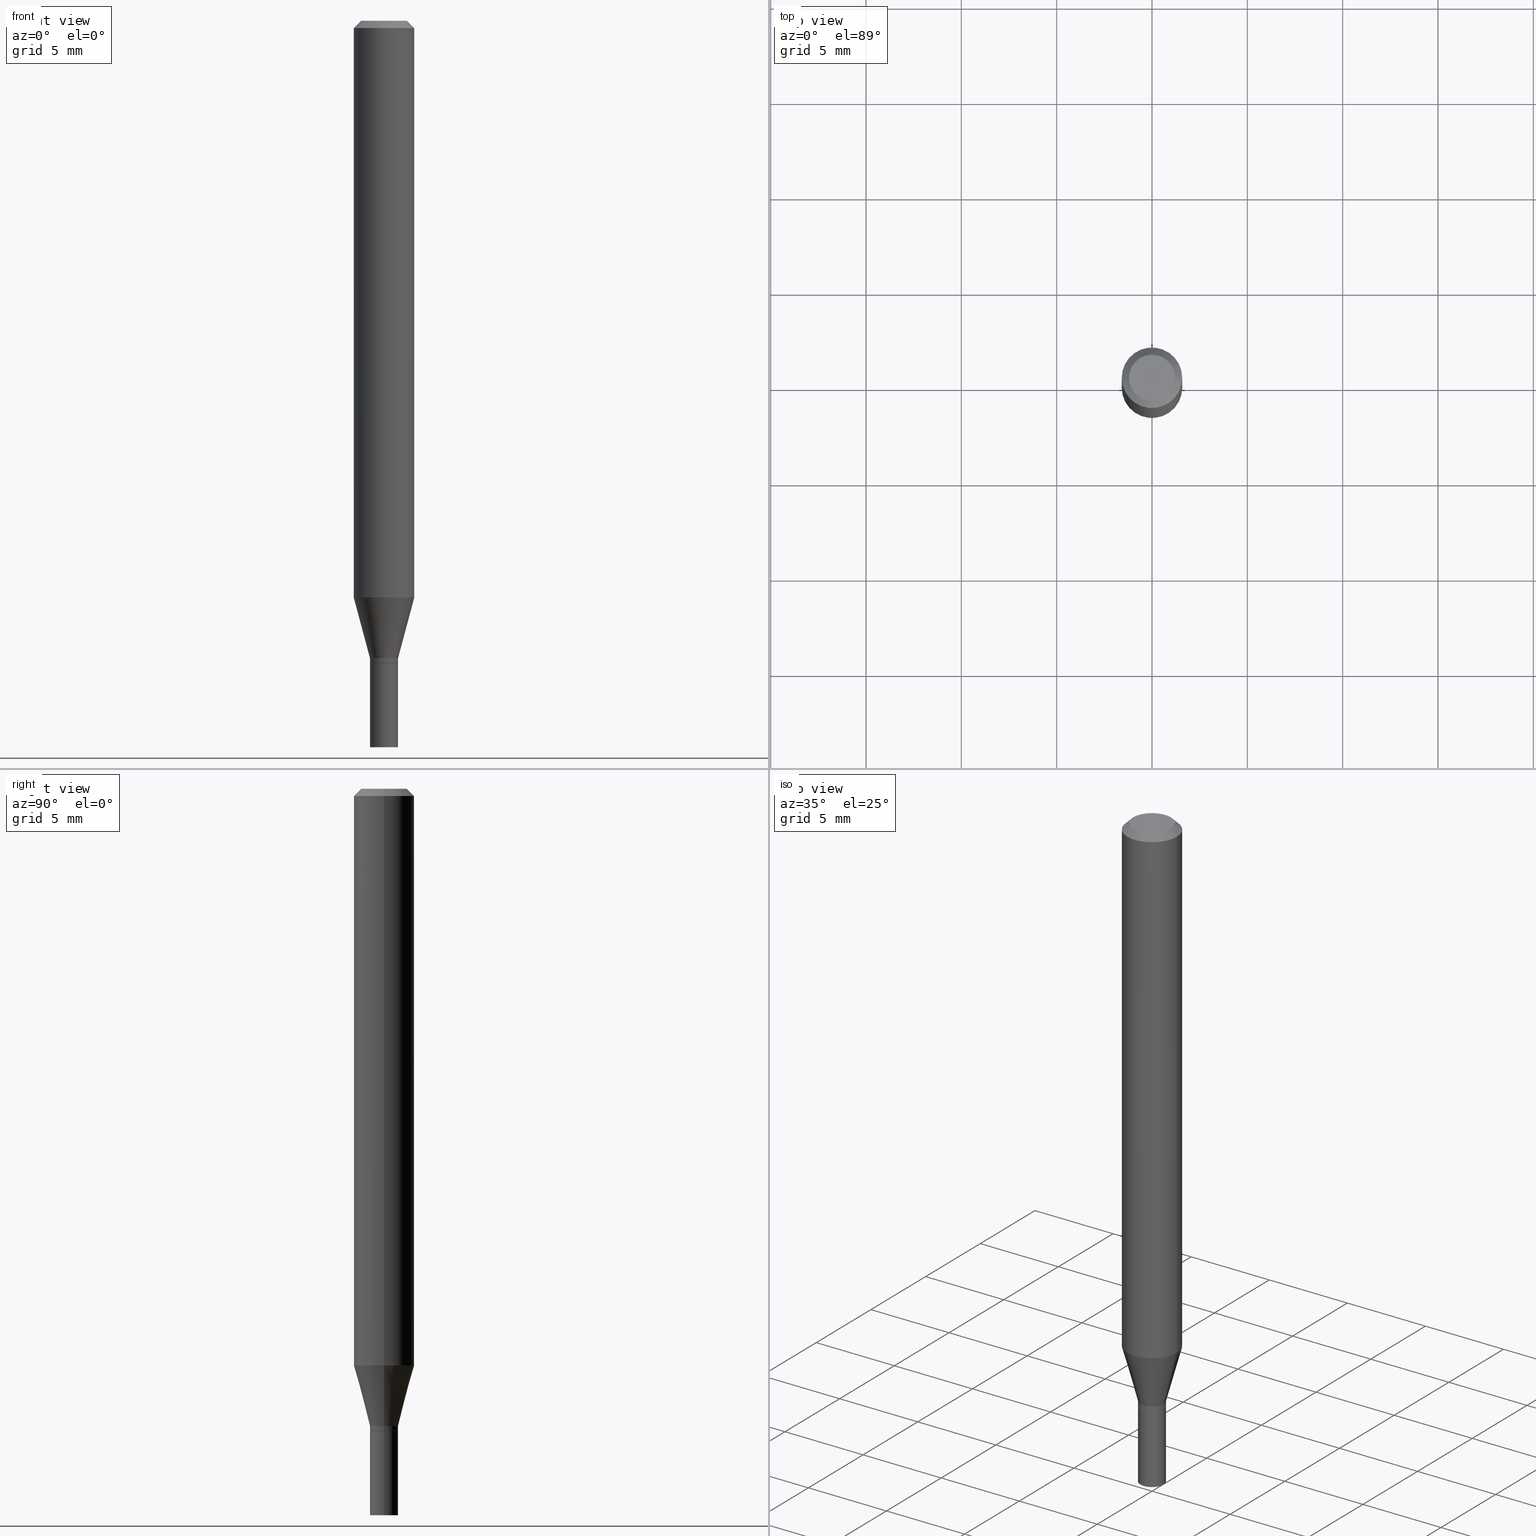
[diagram: canonical four-view strip — front | top / right | iso, engineering-drawing reading convention]
A machine part, canonical four-view strip (front | top / right | iso — engineering-drawing reading convention). The complete STEP part file that produces these views, byte-faithful:
ISO-10303-21;
HEADER;
FILE_DESCRIPTION (( 'STEP AP203' ),
    '1' );
FILE_NAME ('02487.STEP',
    '2024-03-18T20:54:09',
    ( '' ),
    ( '' ),
    'SwSTEP 2.0',
    'SolidWorks 2023',
    '' );
FILE_SCHEMA (( 'CONFIG_CONTROL_DESIGN' ));
ENDSEC;

DATA;
#1 = PERSON_AND_ORGANIZATION ( #121, #136 ) ;
#2 = CARTESIAN_POINT ( 'NONE',  ( 0.02899999999999992167, -4.797295359570480345E-15, -1.316000000000000059 ) ) ;
#3 = CARTESIAN_POINT ( 'NONE',  ( -0.06250000000000000000, 4.440892098500626162E-16, -3.074334431409316114E-30 ) ) ;
#4 = PRODUCT_DEFINITION_SHAPE ( 'NONE', 'NONE',  #16 ) ;
#5 = DIRECTION ( 'NONE',  ( -2.445468806185136597E-29, 3.491481338843145583E-15, 1.000000000000000000 ) ) ;
#6 = CARTESIAN_POINT ( 'NONE',  ( 3.241468902598399016E-29, -4.627958514636591343E-15, -1.325500000000000345 ) ) ;
#7 = VERTEX_POINT ( 'NONE', #71 ) ;
#8 = CLOSED_SHELL ( 'NONE', ( #352, #377, #367, #396 ) ) ;
#9 = APPLICATION_CONTEXT ( 'configuration controlled 3d designs of mechanical parts and assemblies' ) ;
#10 = FACE_OUTER_BOUND ( 'NONE', #412, .T. ) ;
#11 = APPROVAL_ROLE ( '' ) ;
#12 = DIRECTION ( 'NONE',  ( -2.445468806185136597E-29, 3.491481338843145583E-15, 1.000000000000000000 ) ) ;
#13 = ORIENTED_EDGE ( 'NONE', *, *, #252, .F. ) ;
#14 = PERSON_AND_ORGANIZATION_ROLE ( 'design_owner' ) ;
#15 = CARTESIAN_POINT ( 'NONE',  ( 0.000000000000000000, 0.000000000000000000, 0.000000000000000000 ) ) ;
#16 = PRODUCT_DEFINITION ( 'UNKNOWN', '', #119, #455 ) ;
#17 = AXIS2_PLACEMENT_3D ( 'NONE', #209, #100, #212 ) ;
#18 = AXIS2_PLACEMENT_3D ( 'NONE', #96, #382, #23 ) ;
#19 = LINE ( 'NONE', #130, #360 ) ;
#20 = MANIFOLD_SOLID_BREP ( 'Body-Move/Copy2[1]', #8 ) ;
#21 = MANIFOLD_SOLID_BREP ( 'Body-Move/Copy2[2]', #442 ) ;
#22 = AXIS2_PLACEMENT_3D ( 'NONE', #239, #122, #271 ) ;
#23 = DIRECTION ( 'NONE',  ( 1.000000000000000000, -6.982962677686266711E-15, 4.876176775795935793E-29 ) ) ;
#24 = DIRECTION ( 'NONE',  ( -2.445468806185136877E-29, 3.491481338843145188E-15, 1.000000000000000000 ) ) ;
#25 = ORIENTED_EDGE ( 'NONE', *, *, #319, .F. ) ;
#26 = EDGE_CURVE ( 'NONE', #180, #195, #69, .T. ) ;
#27 = AXIS2_PLACEMENT_3D ( 'NONE', #202, #107, #269 ) ;
#28 = CARTESIAN_POINT ( 'NONE',  ( 3.242691637001491818E-29, -4.629704255306012058E-15, -1.326000000000000290 ) ) ;
#29 =( CONVERSION_BASED_UNIT ( 'INCH', #324 ) LENGTH_UNIT ( ) NAMED_UNIT ( #270 ) );
#30 = CARTESIAN_POINT ( 'NONE',  ( -0.02900000000000000147, -4.727405738414936275E-15, -1.326000000000000290 ) ) ;
#31 = DIRECTION ( 'NONE',  ( 1.000000000000000000, -6.982962677686265922E-15, 0.000000000000000000 ) ) ;
#32 = CARTESIAN_POINT ( 'NONE',  ( 3.668203209277705088E-31, -5.237222008264718399E-17, -0.01499999999999999944 ) ) ;
#33 = CARTESIAN_POINT ( 'NONE',  ( 0.02900000000000000147, -4.832210172958914360E-15, -1.326000000000000290 ) ) ;
#34 = CIRCLE ( 'NONE', #111, 0.02900000000000000147 ) ;
#35 = DIRECTION ( 'NONE',  ( -0.7071067811865656694, 7.493145998870420424E-15, 0.7071067811865294761 ) ) ;
#36 = CC_DESIGN_DATE_AND_TIME_ASSIGNMENT ( #370, #193, ( #16 ) ) ;
#37 = DIRECTION ( 'NONE',  ( -2.445468806185136597E-29, 3.491481338843145583E-15, 1.000000000000000000 ) ) ;
#38 = EDGE_LOOP ( 'NONE', ( #296, #205, #95, #102 ) ) ;
#39 = DIRECTION ( 'NONE',  ( 0.2588190451025213501, 1.565188264969621968E-15, 0.9659258262890682012 ) ) ;
#40 = VECTOR ( 'NONE', #374, 39.37007874015748143 ) ;
#41 = COORDINATED_UNIVERSAL_TIME_OFFSET ( 5, 0, .BEHIND. ) ;
#42 = CARTESIAN_POINT ( 'NONE',  ( 0.06250000000000000000, -4.811533449433679005E-16, -0.01499999999999999944 ) ) ;
#43 = ORIENTED_EDGE ( 'NONE', *, *, #76, .T. ) ;
#44 = DIRECTION ( 'NONE',  ( 1.000000000000000000, -6.982962677686280910E-15, 0.000000000000000000 ) ) ;
#45 = CARTESIAN_POINT ( 'NONE',  ( 0.000000000000000000, 0.000000000000000000, 0.000000000000000000 ) ) ;
#46 = ORIENTED_EDGE ( 'NONE', *, *, #268, .T. ) ;
#47 = PERSON_AND_ORGANIZATION ( #121, #136 ) ;
#48 = PLANE ( 'NONE',  #22 ) ;
#49 = DIRECTION ( 'NONE',  ( 1.000000000000000000, -6.982962677686265922E-15, 4.876176775795935793E-29 ) ) ;
#50 = CARTESIAN_POINT ( 'NONE',  ( 3.242691637001491818E-29, -4.629704255306012058E-15, -1.326000000000000290 ) ) ;
#51 = AXIS2_PLACEMENT_3D ( 'NONE', #32, #426, #217 ) ;
#52 = CARTESIAN_POINT ( 'NONE',  ( -0.06250000000000000000, -3.714182309434436740E-15, -1.190976297946442664 ) ) ;
#53 = DIRECTION ( 'NONE',  ( -2.445468806185136597E-29, 3.491481338843145583E-15, 1.000000000000000000 ) ) ;
#54 = DIRECTION ( 'NONE',  ( -2.445468806185136877E-29, 3.491481338843145188E-15, 1.000000000000000000 ) ) ;
#55 = ORIENTED_EDGE ( 'NONE', *, *, #465, .F. ) ;
#56 = ADVANCED_FACE ( 'NONE', ( #147 ), #449, .T. ) ;
#57 = EDGE_LOOP ( 'NONE', ( #437, #253, #62, #339 ) ) ;
#58 = VECTOR ( 'NONE', #424, 39.37007874015748143 ) ;
#59 = ORIENTED_EDGE ( 'NONE', *, *, #389, .F. ) ;
#60 = EDGE_CURVE ( 'NONE', #195, #299, #127, .T. ) ;
#61 = DIRECTION ( 'NONE',  ( -2.445468806185136597E-29, 3.491481338843145583E-15, 1.000000000000000000 ) ) ;
#62 = ORIENTED_EDGE ( 'NONE', *, *, #252, .T. ) ;
#63 = CARTESIAN_POINT ( 'NONE',  ( 0.02850000000000000103, -4.828718691620071353E-15, -1.326000000000000290 ) ) ;
#64 = CIRCLE ( 'NONE', #17, 0.02850000000000000103 ) ;
#65 = DIRECTION ( 'NONE',  ( -2.445468806185136597E-29, 3.491481338843145583E-15, 1.000000000000000000 ) ) ;
#66 = ORIENTED_EDGE ( 'NONE', *, *, #181, .F. ) ;
#67 = CALENDAR_DATE ( 2024, 18, 3 ) ;
#68 = DIRECTION ( 'NONE',  ( -1.000000000000000000, 6.982962677686265922E-15, -4.876176775795935793E-29 ) ) ;
#69 = LINE ( 'NONE', #422, #350 ) ;
#70 = CARTESIAN_POINT ( 'NONE',  ( -0.02900000000000000147, 2.060573933704290644E-16, -1.426491176173922626E-30 ) ) ;
#71 = CARTESIAN_POINT ( 'NONE',  ( -0.02899999999999992167, -4.051457178990793956E-15, -1.316000000000000059 ) ) ;
#72 = APPROVAL_DATE_TIME ( #225, #140 ) ;
#73 = FACE_OUTER_BOUND ( 'NONE', #241, .T. ) ;
#74 = CIRCLE ( 'NONE', #249, 0.04749999999999999362 ) ;
#75 = AXIS2_PLACEMENT_3D ( 'NONE', #104, #321, #68 ) ;
#76 = EDGE_CURVE ( 'NONE', #7, #366, #175, .T. ) ;
#77 = ORIENTED_EDGE ( 'NONE', *, *, #465, .T. ) ;
#78 = COORDINATED_UNIVERSAL_TIME_OFFSET ( 5, 0, .BEHIND. ) ;
#79 = MECHANICAL_CONTEXT ( 'NONE', #172, 'mechanical' ) ;
#80 = PRODUCT ( '02487', '02487', '', ( #79 ) ) ;
#81 = ORIENTED_EDGE ( 'NONE', *, *, #157, .T. ) ;
#82 = VECTOR ( 'NONE', #290, 39.37007874015748143 ) ;
#83 = LOCAL_TIME ( 16, 54, 9.000000000000000000, #246 ) ;
#84 = CC_DESIGN_PERSON_AND_ORGANIZATION_ASSIGNMENT ( #47, #199, ( #16 ) ) ;
#85 = APPROVAL_DATE_TIME ( #373, #233 ) ;
#86 = CARTESIAN_POINT ( 'NONE',  ( -0.02900000000000000147, -4.727405738414936275E-15, -1.500000000000000222 ) ) ;
#87 = VERTEX_POINT ( 'NONE', #30 ) ;
#88 = PERSON_AND_ORGANIZATION ( #121, #136 ) ;
#89 = PLANE ( 'NONE',  #27 ) ;
#90 = CARTESIAN_POINT ( 'NONE',  ( -0.06250000000000000000, 3.840629472727444916E-16, -0.01499999999999999944 ) ) ;
#91 = CARTESIAN_POINT ( 'NONE',  ( 0.06250000000000000000, -4.364351673553916694E-16, 3.047610484872459871E-30 ) ) ;
#92 = EDGE_CURVE ( 'NONE', #131, #348, #34, .T. ) ;
#93 = FACE_OUTER_BOUND ( 'NONE', #38, .T. ) ;
#94 = ORIENTED_EDGE ( 'NONE', *, *, #171, .T. ) ;
#95 = ORIENTED_EDGE ( 'NONE', *, *, #319, .T. ) ;
#96 = CARTESIAN_POINT ( 'NONE',  ( 0.000000000000000000, 0.000000000000000000, 0.000000000000000000 ) ) ;
#97 = VECTOR ( 'NONE', #334, 39.37007874015748143 ) ;
#98 = CC_DESIGN_APPROVAL ( #140, ( #342 ) ) ;
#99 = PRODUCT_RELATED_PRODUCT_CATEGORY ( 'detail', '', ( #80 ) ) ;
#100 = DIRECTION ( 'NONE',  ( -2.445468806185136597E-29, 3.491481338843145583E-15, 1.000000000000000000 ) ) ;
#101 = AXIS2_PLACEMENT_3D ( 'NONE', #262, #37, #188 ) ;
#102 = ORIENTED_EDGE ( 'NONE', *, *, #309, .F. ) ;
#103 = DIRECTION ( 'NONE',  ( 0.7071067811865656694, -2.468850131082446387E-15, 0.7071067811865294761 ) ) ;
#104 = CARTESIAN_POINT ( 'NONE',  ( 3.316907271900976096E-16, 0.04749999999999999362, -2.904368096790510281E-16 ) ) ;
#105 = CARTESIAN_POINT ( 'NONE',  ( 3.668203209277705088E-31, -5.237222008264718399E-17, -0.01499999999999999944 ) ) ;
#106 = DIRECTION ( 'NONE',  ( 1.000000000000000000, -6.982962677686262766E-15, 0.000000000000000000 ) ) ;
#107 = DIRECTION ( 'NONE',  ( -2.438088387897960049E-29, 3.491481338843145188E-15, 1.000000000000000000 ) ) ;
#108 = CC_DESIGN_PERSON_AND_ORGANIZATION_ASSIGNMENT ( #328, #112, ( #119 ) ) ;
#109 = DIRECTION ( 'NONE',  ( 1.000000000000000000, -6.982962677686250933E-15, 0.000000000000000000 ) ) ;
#110 = ORIENTED_EDGE ( 'NONE', *, *, #60, .T. ) ;
#111 = AXIS2_PLACEMENT_3D ( 'NONE', #462, #145, #393 ) ;
#112 = PERSON_AND_ORGANIZATION_ROLE ( 'creator' ) ;
#113 = DIRECTION ( 'NONE',  ( 2.445468806185136597E-29, -3.491481338843145583E-15, -1.000000000000000000 ) ) ;
#114 = EDGE_LOOP ( 'NONE', ( #110, #428, #59, #13 ) ) ;
#115 = DATE_AND_TIME ( #438, #430 ) ;
#116 = CARTESIAN_POINT ( 'NONE',  ( 0.02900000000000000147, -2.025059176529017356E-16, 1.414091264980821422E-30 ) ) ;
#117 = ORIENTED_EDGE ( 'NONE', *, *, #171, .F. ) ;
#118 = AXIS2_PLACEMENT_3D ( 'NONE', #105, #397, #297 ) ;
#119 = PRODUCT_DEFINITION_FORMATION_WITH_SPECIFIED_SOURCE ( 'ANY', '', #80, .NOT_KNOWN. ) ;
#120 = CALENDAR_DATE ( 2024, 18, 3 ) ;
#121 = PERSON ( 'UNSPECIFIED', 'UNSPECIFIED', 'UNSPECIFIED', ('UNSPECIFIED'), ('UNSPECIFIED'), ('UNSPECIFIED') ) ;
#122 = DIRECTION ( 'NONE',  ( 2.438088387897960049E-29, -3.491481338843145188E-15, -1.000000000000000000 ) ) ;
#123 = CARTESIAN_POINT ( 'NONE',  ( 0.000000000000000000, 0.000000000000000000, 0.000000000000000000 ) ) ;
#124 = EDGE_CURVE ( 'NONE', #138, #87, #164, .T. ) ;
#125 = FACE_OUTER_BOUND ( 'NONE', #257, .T. ) ;
#126 = EDGE_CURVE ( 'NONE', #134, #260, #388, .T. ) ;
#127 = CIRCLE ( 'NONE', #248, 0.02899999999999992514 ) ;
#128 = AXIS2_PLACEMENT_3D ( 'NONE', #50, #167, #44 ) ;
#129 = AXIS2_PLACEMENT_3D ( 'NONE', #392, #357, #31 ) ;
#130 = CARTESIAN_POINT ( 'NONE',  ( -0.02899999999999992514, 2.060573933704285220E-16, -1.426491176173918948E-30 ) ) ;
#131 = VERTEX_POINT ( 'NONE', #323 ) ;
#132 = EDGE_LOOP ( 'NONE', ( #223, #294 ) ) ;
#133 = EDGE_CURVE ( 'NONE', #7, #466, #216, .T. ) ;
#134 = VERTEX_POINT ( 'NONE', #418 ) ;
#135 = CIRCLE ( 'NONE', #118, 0.06250000000000000000 ) ;
#136 = ORGANIZATION ( 'UNSPECIFIED', 'UNSPECIFIED', '' ) ;
#137 = DIRECTION ( 'NONE',  ( 1.000000000000000000, -6.982962677686266711E-15, 0.000000000000000000 ) ) ;
#138 = VERTEX_POINT ( 'NONE', #33 ) ;
#139 = PERSON_AND_ORGANIZATION_ROLE ( 'classification_officer' ) ;
#140 = APPROVAL ( #150, 'UNSPECIFIED' ) ;
#141 = DIRECTION ( 'NONE',  ( -0.2588190451025213501, 5.211531920934551042E-15, 0.9659258262890682012 ) ) ;
#142 = ORIENTED_EDGE ( 'NONE', *, *, #300, .T. ) ;
#143 = CARTESIAN_POINT ( 'NONE',  ( 6.093689898318465335E-45, -8.700174179635472181E-31, -2.491828921680032634E-16 ) ) ;
#144 = VECTOR ( 'NONE', #54, 39.37007874015748143 ) ;
#145 = DIRECTION ( 'NONE',  ( -2.445468806185136597E-29, 3.491481338843145583E-15, 1.000000000000000000 ) ) ;
#146 = SHAPE_DEFINITION_REPRESENTATION ( #4, #206 ) ;
#147 = FACE_OUTER_BOUND ( 'NONE', #173, .T. ) ;
#148 = CARTESIAN_POINT ( 'NONE',  ( 2.912495385533880761E-29, -4.158271519284499356E-15, -1.190976297946442664 ) ) ;
#149 = ORIENTED_EDGE ( 'NONE', *, *, #92, .F. ) ;
#150 = APPROVAL_STATUS ( 'not_yet_approved' ) ;
#151 = CARTESIAN_POINT ( 'NONE',  ( 0.02899999999999992514, -4.830464432289492857E-15, -1.325500000000000345 ) ) ;
#152 = LINE ( 'NONE', #42, #82 ) ;
#153 = AXIS2_PLACEMENT_3D ( 'NONE', #421, #284, #386 ) ;
#154 = AXIS2_PLACEMENT_3D ( 'NONE', #148, #5, #106 ) ;
#155 =( LENGTH_UNIT ( ) NAMED_UNIT ( * ) SI_UNIT ( $, .METRE. ) );
#156 = FACE_OUTER_BOUND ( 'NONE', #384, .T. ) ;
#157 = EDGE_CURVE ( 'NONE', #366, #189, #314, .T. ) ;
#158 = ORIENTED_EDGE ( 'NONE', *, *, #344, .T. ) ;
#159 = PERSON_AND_ORGANIZATION ( #121, #136 ) ;
#160 = ORIENTED_EDGE ( 'NONE', *, *, #446, .F. ) ;
#161 = DIRECTION ( 'NONE',  ( 0.000000000000000000, 0.000000000000000000, 1.000000000000000000 ) ) ;
#162 = DIRECTION ( 'NONE',  ( -2.445468806185136597E-29, 3.491481338843145583E-15, 1.000000000000000000 ) ) ;
#163 = AXIS2_PLACEMENT_3D ( 'NONE', #425, #61, #179 ) ;
#164 = CIRCLE ( 'NONE', #416, 0.02900000000000000147 ) ;
#165 = CC_DESIGN_APPROVAL ( #233, ( #16 ) ) ;
#166 = DIRECTION ( 'NONE',  ( 1.000000000000000000, -6.982962677686266711E-15, 4.876176775795935793E-29 ) ) ;
#167 = DIRECTION ( 'NONE',  ( -2.445468806185136597E-29, 3.491481338843145583E-15, 1.000000000000000000 ) ) ;
#168 = LINE ( 'NONE', #91, #97 ) ;
#169 = DIRECTION ( 'NONE',  ( 1.000000000000000000, -6.982962677686262766E-15, 0.000000000000000000 ) ) ;
#170 = CIRCLE ( 'NONE', #351, 0.02900000000000000147 ) ;
#171 = EDGE_CURVE ( 'NONE', #189, #238, #303, .T. ) ;
#172 = APPLICATION_CONTEXT ( 'configuration controlled 3d designs of mechanical parts and assemblies' ) ;
#173 = EDGE_LOOP ( 'NONE', ( #267, #263, #77, #317 ) ) ;
#174 = PERSON_AND_ORGANIZATION_ROLE ( 'design_supplier' ) ;
#175 = LINE ( 'NONE', #251, #341 ) ;
#176 = EDGE_CURVE ( 'NONE', #286, #180, #276, .T. ) ;
#177 = AXIS2_PLACEMENT_3D ( 'NONE', #15, #375, #273 ) ;
#178 = LOCAL_TIME ( 16, 54, 9.000000000000000000, #78 ) ;
#179 = DIRECTION ( 'NONE',  ( 1.000000000000000000, -6.982962677686251722E-15, 0.000000000000000000 ) ) ;
#180 = VERTEX_POINT ( 'NONE', #63 ) ;
#181 = EDGE_CURVE ( 'NONE', #180, #286, #64, .T. ) ;
#182 = DIRECTION ( 'NONE',  ( -2.445468806185136597E-29, 3.491481338843145583E-15, 1.000000000000000000 ) ) ;
#183 = ORIENTED_EDGE ( 'NONE', *, *, #157, .F. ) ;
#184 = PLANE ( 'NONE',  #75 ) ;
#185 = CIRCLE ( 'NONE', #192, 0.06250000000000000000 ) ;
#186 = DIRECTION ( 'NONE',  ( 1.000000000000000000, -6.982962677686251722E-15, 0.000000000000000000 ) ) ;
#187 = DIRECTION ( 'NONE',  ( -2.445468806185136877E-29, 3.491481338843145188E-15, 1.000000000000000000 ) ) ;
#188 = DIRECTION ( 'NONE',  ( 1.000000000000000000, -6.982962677686266711E-15, 4.876176775795935793E-29 ) ) ;
#189 = VERTEX_POINT ( 'NONE', #464 ) ;
#190 = EDGE_CURVE ( 'NONE', #260, #134, #74, .T. ) ;
#191 = DIRECTION ( 'NONE',  ( 1.000000000000000000, -6.982962677686251722E-15, 0.000000000000000000 ) ) ;
#192 = AXIS2_PLACEMENT_3D ( 'NONE', #338, #307, #169 ) ;
#193 = DATE_TIME_ROLE ( 'creation_date' ) ;
#194 = CYLINDRICAL_SURFACE ( 'NONE', #281, 0.02899999999999992514 ) ;
#195 = VERTEX_POINT ( 'NONE', #151 ) ;
#196 = DIRECTION ( 'NONE',  ( 1.000000000000000000, 0.000000000000000000, 0.000000000000000000 ) ) ;
#197 = CYLINDRICAL_SURFACE ( 'NONE', #177, 0.02899999999999992514 ) ;
#198 = ORIENTED_EDGE ( 'NONE', *, *, #176, .T. ) ;
#199 = PERSON_AND_ORGANIZATION_ROLE ( 'creator' ) ;
#200 = CC_DESIGN_PERSON_AND_ORGANIZATION_ASSIGNMENT ( #337, #14, ( #80 ) ) ;
#201 = AXIS2_PLACEMENT_3D ( 'NONE', #258, #402, #291 ) ;
#202 = CARTESIAN_POINT ( 'NONE',  ( 3.576687321579069994E-29, -5.368277968210015545E-15, -1.500000000000000222 ) ) ;
#203 = AXIS2_PLACEMENT_3D ( 'NONE', #123, #340, #272 ) ;
#204 = VECTOR ( 'NONE', #187, 39.37007874015748143 ) ;
#205 = ORIENTED_EDGE ( 'NONE', *, *, #446, .T. ) ;
#206 = ADVANCED_BREP_SHAPE_REPRESENTATION ( '02487', ( #20, #21, #289 ), #315 ) ;
#207 = EDGE_LOOP ( 'NONE', ( #453, #81, #383, #463 ) ) ;
#208 = EDGE_LOOP ( 'NONE', ( #379, #364 ) ) ;
#209 = CARTESIAN_POINT ( 'NONE',  ( 3.242691637001491818E-29, -4.629704255306012058E-15, -1.326000000000000290 ) ) ;
#210 = EDGE_CURVE ( 'NONE', #238, #189, #135, .T. ) ;
#211 = AXIS2_PLACEMENT_3D ( 'NONE', #229, #274, #166 ) ;
#212 = DIRECTION ( 'NONE',  ( 1.000000000000000000, -6.982962677686280910E-15, 0.000000000000000000 ) ) ;
#213 = DIRECTION ( 'NONE',  ( -2.445468806185136597E-29, 3.491481338843145583E-15, 1.000000000000000000 ) ) ;
#214 = DIRECTION ( 'NONE',  ( 1.000000000000000000, -6.982962677686265922E-15, 0.000000000000000000 ) ) ;
#215 = FACE_OUTER_BOUND ( 'NONE', #208, .T. ) ;
#216 = CIRCLE ( 'NONE', #457, 0.02899999999999992167 ) ;
#217 = DIRECTION ( 'NONE',  ( -1.000000000000000000, 6.982962677686266711E-15, 0.000000000000000000 ) ) ;
#218 = CC_DESIGN_APPROVAL ( #385, ( #119 ) ) ;
#219 = EDGE_LOOP ( 'NONE', ( #149, #160 ) ) ;
#220 = ORIENTED_EDGE ( 'NONE', *, *, #279, .F. ) ;
#221 = CC_DESIGN_DATE_AND_TIME_ASSIGNMENT ( #312, #454, ( #342 ) ) ;
#222 = DIRECTION ( 'NONE',  ( -1.000000000000000000, 6.982962677686266711E-15, 0.000000000000000000 ) ) ;
#223 = ORIENTED_EDGE ( 'NONE', *, *, #124, .T. ) ;
#224 = ADVANCED_FACE ( 'NONE', ( #156 ), #398, .T. ) ;
#225 = DATE_AND_TIME ( #394, #178 ) ;
#226 = VECTOR ( 'NONE', #24, 39.37007874015748143 ) ;
#227 = ORIENTED_EDGE ( 'NONE', *, *, #460, .F. ) ;
#228 = CALENDAR_DATE ( 2024, 18, 3 ) ;
#229 = CARTESIAN_POINT ( 'NONE',  ( 0.000000000000000000, 0.000000000000000000, 0.000000000000000000 ) ) ;
#230 = ORIENTED_EDGE ( 'NONE', *, *, #176, .F. ) ;
#231 = APPROVAL_ROLE ( '' ) ;
#232 = LINE ( 'NONE', #116, #144 ) ;
#233 = APPROVAL ( #301, 'UNSPECIFIED' ) ;
#234 = FACE_OUTER_BOUND ( 'NONE', #336, .T. ) ;
#235 = FACE_OUTER_BOUND ( 'NONE', #445, .T. ) ;
#236 = AXIS2_PLACEMENT_3D ( 'NONE', #302, #237, #49 ) ;
#237 = DIRECTION ( 'NONE',  ( -2.438088387897960049E-29, 3.491481338843145188E-15, 1.000000000000000000 ) ) ;
#238 = VERTEX_POINT ( 'NONE', #322 ) ;
#239 = CARTESIAN_POINT ( 'NONE',  ( 2.025059176529341282E-16, 0.02899999999999536976, -1.326000000000000290 ) ) ;
#240 = CARTESIAN_POINT ( 'NONE',  ( 3.242691637001491818E-29, -4.629704255306012058E-15, -1.326000000000000290 ) ) ;
#241 = EDGE_LOOP ( 'NONE', ( #183, #369, #142, #117 ) ) ;
#242 = AXIS2_PLACEMENT_3D ( 'NONE', #6, #427, #109 ) ;
#243 = DIRECTION ( 'NONE',  ( 1.000000000000000000, -6.982962677686267499E-15, 4.852736867747366768E-29 ) ) ;
#244 = ORIENTED_EDGE ( 'NONE', *, *, #436, .T. ) ;
#245 = CARTESIAN_POINT ( 'NONE',  ( 3.218236948939640273E-29, -4.594789441917579620E-15, -1.316000000000000059 ) ) ;
#246 = COORDINATED_UNIVERSAL_TIME_OFFSET ( 5, 0, .BEHIND. ) ;
#247 = ORIENTED_EDGE ( 'NONE', *, *, #210, .T. ) ;
#248 = AXIS2_PLACEMENT_3D ( 'NONE', #318, #182, #420 ) ;
#249 = AXIS2_PLACEMENT_3D ( 'NONE', #143, #65, #354 ) ;
#250 = APPROVAL_PERSON_ORGANIZATION ( #1, #140, #327 ) ;
#251 = CARTESIAN_POINT ( 'NONE',  ( -0.02899999999999992167, -4.388732048547151961E-15, -1.316000000000000059 ) ) ;
#252 = EDGE_CURVE ( 'NONE', #195, #466, #320, .T. ) ;
#253 = ORIENTED_EDGE ( 'NONE', *, *, #279, .T. ) ;
#254 = LINE ( 'NONE', #434, #390 ) ;
#255 = LINE ( 'NONE', #365, #331 ) ;
#256 = ADVANCED_FACE ( 'NONE', ( #10 ), #295, .T. ) ;
#257 = EDGE_LOOP ( 'NONE', ( #66, #230 ) ) ;
#258 = CARTESIAN_POINT ( 'NONE',  ( 3.242691637001491818E-29, -4.629704255306012058E-15, -1.326000000000000290 ) ) ;
#259 = ADVANCED_FACE ( 'NONE', ( #73 ), #435, .T. ) ;
#260 = VERTEX_POINT ( 'NONE', #358 ) ;
#261 = COORDINATED_UNIVERSAL_TIME_OFFSET ( 5, 0, .BEHIND. ) ;
#262 = CARTESIAN_POINT ( 'NONE',  ( 0.000000000000000000, 0.000000000000000000, 0.000000000000000000 ) ) ;
#263 = ORIENTED_EDGE ( 'NONE', *, *, #133, .T. ) ;
#264 = APPROVAL_DATE_TIME ( #115, #385 ) ;
#265 = FACE_OUTER_BOUND ( 'NONE', #57, .T. ) ;
#266 = CIRCLE ( 'NONE', #154, 0.06250000000000000000 ) ;
#267 = ORIENTED_EDGE ( 'NONE', *, *, #76, .F. ) ;
#268 = EDGE_CURVE ( 'NONE', #260, #238, #152, .T. ) ;
#269 = DIRECTION ( 'NONE',  ( 1.000000000000000000, -6.982962677686265922E-15, 4.876176775795935793E-29 ) ) ;
#270 = DIMENSIONAL_EXPONENTS ( 1.000000000000000000, 0.000000000000000000, 0.000000000000000000, 0.000000000000000000, 0.000000000000000000, 0.000000000000000000, 0.000000000000000000 ) ;
#271 = DIRECTION ( 'NONE',  ( -1.000000000000000000, 6.982962677686265922E-15, -4.876176775795935793E-29 ) ) ;
#272 = DIRECTION ( 'NONE',  ( 1.000000000000000000, -6.982962677686266711E-15, 4.876176775795935793E-29 ) ) ;
#273 = DIRECTION ( 'NONE',  ( 1.000000000000000000, -6.982962677686265922E-15, 4.876176775795935793E-29 ) ) ;
#274 = DIRECTION ( 'NONE',  ( -2.445468806185136597E-29, 3.491481338843145583E-15, 1.000000000000000000 ) ) ;
#275 = ADVANCED_FACE ( 'NONE', ( #325 ), #443, .T. ) ;
#276 = CIRCLE ( 'NONE', #153, 0.02850000000000000103 ) ;
#277 = APPROVAL_PERSON_ORGANIZATION ( #88, #233, #231 ) ;
#278 = CYLINDRICAL_SURFACE ( 'NONE', #211, 0.02900000000000000147 ) ;
#279 = EDGE_CURVE ( 'NONE', #299, #195, #345, .T. ) ;
#280 = ORIENTED_EDGE ( 'NONE', *, *, #124, .F. ) ;
#281 = AXIS2_PLACEMENT_3D ( 'NONE', #407, #162, #447 ) ;
#282 = CIRCLE ( 'NONE', #129, 0.02900000000000000147 ) ;
#283 = ADVANCED_FACE ( 'NONE', ( #400 ), #310, .T. ) ;
#284 = DIRECTION ( 'NONE',  ( -2.445468806185136597E-29, 3.491481338843145583E-15, 1.000000000000000000 ) ) ;
#285 = CARTESIAN_POINT ( 'NONE',  ( 3.668203209277705088E-31, -5.237222008264718399E-17, -0.01499999999999999944 ) ) ;
#286 = VERTEX_POINT ( 'NONE', #439 ) ;
#287 = ORIENTED_EDGE ( 'NONE', *, *, #268, .F. ) ;
#288 = AXIS2_PLACEMENT_3D ( 'NONE', #359, #387, #243 ) ;
#289 = AXIS2_PLACEMENT_3D ( 'NONE', #45, #161, #196 ) ;
#290 = DIRECTION ( 'NONE',  ( 0.7071067811865534569, -7.319954787623276556E-15, -0.7071067811865415775 ) ) ;
#291 = DIRECTION ( 'NONE',  ( 1.000000000000000000, -6.982962677686280910E-15, 0.000000000000000000 ) ) ;
#292 = CC_DESIGN_PERSON_AND_ORGANIZATION_ASSIGNMENT ( #391, #174, ( #119 ) ) ;
#293 =( NAMED_UNIT ( * ) SI_UNIT ( $, .STERADIAN. ) SOLID_ANGLE_UNIT ( ) );
#294 = ORIENTED_EDGE ( 'NONE', *, *, #309, .T. ) ;
#295 = CONICAL_SURFACE ( 'NONE', #201, 0.02850000000000000103, 0.7853981633974739252 ) ;
#296 = ORIENTED_EDGE ( 'NONE', *, *, #436, .F. ) ;
#297 = DIRECTION ( 'NONE',  ( 1.000000000000000000, -6.982962677686266711E-15, 0.000000000000000000 ) ) ;
#298 = COORDINATED_UNIVERSAL_TIME_OFFSET ( 5, 0, .BEHIND. ) ;
#299 = VERTEX_POINT ( 'NONE', #378 ) ;
#300 = EDGE_CURVE ( 'NONE', #332, #238, #168, .T. ) ;
#301 = APPROVAL_STATUS ( 'not_yet_approved' ) ;
#302 = CARTESIAN_POINT ( 'NONE',  ( 3.242691637001491818E-29, -4.629704255306012058E-15, -1.326000000000000290 ) ) ;
#303 = CIRCLE ( 'NONE', #376, 0.06250000000000000000 ) ;
#304 = CARTESIAN_POINT ( 'NONE',  ( 3.218236948939640273E-29, -4.594789441917579620E-15, -1.316000000000000059 ) ) ;
#305 = FACE_OUTER_BOUND ( 'NONE', #207, .T. ) ;
#306 = DIRECTION ( 'NONE',  ( -2.445468806185136877E-29, 3.491481338843145188E-15, 1.000000000000000000 ) ) ;
#307 = DIRECTION ( 'NONE',  ( -2.445468806185136597E-29, 3.491481338843145583E-15, 1.000000000000000000 ) ) ;
#308 = FACE_OUTER_BOUND ( 'NONE', #132, .T. ) ;
#309 = EDGE_CURVE ( 'NONE', #87, #138, #170, .T. ) ;
#310 = CONICAL_SURFACE ( 'NONE', #330, 0.06250000000000000000, 0.7853981633974567167 ) ;
#311 = ORIENTED_EDGE ( 'NONE', *, *, #389, .T. ) ;
#312 = DATE_AND_TIME ( #67, #83 ) ;
#313 = ORIENTED_EDGE ( 'NONE', *, *, #126, .F. ) ;
#314 = LINE ( 'NONE', #3, #226 ) ;
#315 =( GEOMETRIC_REPRESENTATION_CONTEXT ( 3 ) GLOBAL_UNCERTAINTY_ASSIGNED_CONTEXT ( ( #440 ) ) GLOBAL_UNIT_ASSIGNED_CONTEXT ( ( #29, #429, #293 ) ) REPRESENTATION_CONTEXT ( 'NONE', 'WORKASPACE' ) );
#316 = SECURITY_CLASSIFICATION_LEVEL ( 'unclassified' ) ;
#317 = ORIENTED_EDGE ( 'NONE', *, *, #432, .F. ) ;
#318 = CARTESIAN_POINT ( 'NONE',  ( 3.241468902598399016E-29, -4.627958514636591343E-15, -1.325500000000000345 ) ) ;
#319 = EDGE_CURVE ( 'NONE', #131, #138, #232, .T. ) ;
#320 = LINE ( 'NONE', #431, #58 ) ;
#321 = DIRECTION ( 'NONE',  ( 2.438088387897960049E-29, -3.491481338843145188E-15, -1.000000000000000000 ) ) ;
#322 = CARTESIAN_POINT ( 'NONE',  ( 0.06250000000000000000, -4.888073874380388472E-16, -0.01499999999999999944 ) ) ;
#323 = CARTESIAN_POINT ( 'NONE',  ( 0.02900000000000000147, -5.439727925917620479E-15, -1.500000000000000222 ) ) ;
#324 = LENGTH_MEASURE_WITH_UNIT ( LENGTH_MEASURE( 0.02539999999999999897 ), #155 );
#325 = FACE_OUTER_BOUND ( 'NONE', #326, .T. ) ;
#326 = EDGE_LOOP ( 'NONE', ( #287, #313, #158, #94 ) ) ;
#327 = APPROVAL_ROLE ( '' ) ;
#328 = PERSON_AND_ORGANIZATION ( #121, #136 ) ;
#329 = CONICAL_SURFACE ( 'NONE', #128, 0.02850000000000000103, 0.7853981633974739252 ) ;
#330 = AXIS2_PLACEMENT_3D ( 'NONE', #399, #113, #222 ) ;
#331 = VECTOR ( 'NONE', #39, 39.37007874015747433 ) ;
#332 = VERTEX_POINT ( 'NONE', #448 ) ;
#333 = APPROVAL_STATUS ( 'not_yet_approved' ) ;
#334 = DIRECTION ( 'NONE',  ( -2.445468806185136877E-29, 3.491481338843145188E-15, 1.000000000000000000 ) ) ;
#335 = EDGE_CURVE ( 'NONE', #332, #366, #185, .T. ) ;
#336 = EDGE_LOOP ( 'NONE', ( #227, #198, #403, #220 ) ) ;
#337 = PERSON_AND_ORGANIZATION ( #121, #136 ) ;
#338 = CARTESIAN_POINT ( 'NONE',  ( 2.912495385533880761E-29, -4.158271519284499356E-15, -1.190976297946442664 ) ) ;
#339 = ORIENTED_EDGE ( 'NONE', *, *, #133, .F. ) ;
#340 = DIRECTION ( 'NONE',  ( -2.445468806185136597E-29, 3.491481338843145583E-15, 1.000000000000000000 ) ) ;
#341 = VECTOR ( 'NONE', #141, 39.37007874015747433 ) ;
#342 = SECURITY_CLASSIFICATION ( '', '', #316 ) ;
#343 = ADVANCED_FACE ( 'NONE', ( #265 ), #194, .T. ) ;
#344 = EDGE_CURVE ( 'NONE', #134, #189, #451, .T. ) ;
#345 = CIRCLE ( 'NONE', #242, 0.02899999999999992514 ) ;
#346 = LOCAL_TIME ( 16, 54, 9.000000000000000000, #41 ) ;
#347 = EDGE_CURVE ( 'NONE', #299, #7, #19, .T. ) ;
#348 = VERTEX_POINT ( 'NONE', #86 ) ;
#349 = DIRECTION ( 'NONE',  ( -2.445468806185136597E-29, 3.491481338843145583E-15, 1.000000000000000000 ) ) ;
#350 = VECTOR ( 'NONE', #103, 39.37007874015748143 ) ;
#351 = AXIS2_PLACEMENT_3D ( 'NONE', #240, #12, #410 ) ;
#352 = ADVANCED_FACE ( 'NONE', ( #235 ), #278, .T. ) ;
#353 = CYLINDRICAL_SURFACE ( 'NONE', #18, 0.06250000000000000000 ) ;
#354 = DIRECTION ( 'NONE',  ( 1.000000000000000000, -6.982962677686267499E-15, 4.852736867747366768E-29 ) ) ;
#355 = ADVANCED_FACE ( 'NONE', ( #371 ), #197, .T. ) ;
#356 = DIRECTION ( 'NONE',  ( -2.445468806185136597E-29, 3.491481338843145583E-15, 1.000000000000000000 ) ) ;
#357 = DIRECTION ( 'NONE',  ( -2.445468806185136597E-29, 3.491481338843145583E-15, 1.000000000000000000 ) ) ;
#358 = CARTESIAN_POINT ( 'NONE',  ( 0.04749999999999999362, -4.035134999187582567E-16, -2.491828921680006996E-16 ) ) ;
#359 = CARTESIAN_POINT ( 'NONE',  ( 6.093689898318465335E-45, -8.700174179635472181E-31, -2.491828921680032634E-16 ) ) ;
#360 = VECTOR ( 'NONE', #306, 39.37007874015748143 ) ;
#361 = LINE ( 'NONE', #70, #204 ) ;
#362 = CARTESIAN_POINT ( 'NONE',  ( 3.218236948939640273E-29, -4.594789441917579620E-15, -1.316000000000000059 ) ) ;
#363 = ADVANCED_FACE ( 'NONE', ( #125 ), #413, .F. ) ;
#364 = ORIENTED_EDGE ( 'NONE', *, *, #190, .T. ) ;
#365 = CARTESIAN_POINT ( 'NONE',  ( 0.02899999999999992167, -4.797295359570480345E-15, -1.316000000000000059 ) ) ;
#366 = VERTEX_POINT ( 'NONE', #52 ) ;
#367 = ADVANCED_FACE ( 'NONE', ( #93 ), #444, .T. ) ;
#368 = AXIS2_PLACEMENT_3D ( 'NONE', #362, #213, #191 ) ;
#369 = ORIENTED_EDGE ( 'NONE', *, *, #432, .T. ) ;
#370 = DATE_AND_TIME ( #228, #406 ) ;
#371 = FACE_OUTER_BOUND ( 'NONE', #114, .T. ) ;
#372 = EDGE_LOOP ( 'NONE', ( #414, #46, #247, #381 ) ) ;
#373 = DATE_AND_TIME ( #120, #346 ) ;
#374 = DIRECTION ( 'NONE',  ( -0.7071067811865534569, 2.468850131082318986E-15, -0.7071067811865415775 ) ) ;
#375 = DIRECTION ( 'NONE',  ( -2.445468806185136597E-29, 3.491481338843145583E-15, 1.000000000000000000 ) ) ;
#376 = AXIS2_PLACEMENT_3D ( 'NONE', #285, #458, #137 ) ;
#377 = ADVANCED_FACE ( 'NONE', ( #409 ), #89, .F. ) ;
#378 = CARTESIAN_POINT ( 'NONE',  ( -0.02899999999999992514, -4.421901121266162895E-15, -1.325500000000000345 ) ) ;
#379 = ORIENTED_EDGE ( 'NONE', *, *, #126, .T. ) ;
#380 = ADVANCED_FACE ( 'NONE', ( #234 ), #329, .T. ) ;
#381 = ORIENTED_EDGE ( 'NONE', *, *, #344, .F. ) ;
#382 = DIRECTION ( 'NONE',  ( -2.445468806185136597E-29, 3.491481338843145583E-15, 1.000000000000000000 ) ) ;
#383 = ORIENTED_EDGE ( 'NONE', *, *, #210, .F. ) ;
#384 = EDGE_LOOP ( 'NONE', ( #311, #43, #441, #55 ) ) ;
#385 = APPROVAL ( #333, 'UNSPECIFIED' ) ;
#386 = DIRECTION ( 'NONE',  ( 1.000000000000000000, -6.982962677686280910E-15, 0.000000000000000000 ) ) ;
#387 = DIRECTION ( 'NONE',  ( -2.445468806185136597E-29, 3.491481338843145583E-15, 1.000000000000000000 ) ) ;
#388 = CIRCLE ( 'NONE', #288, 0.04749999999999999362 ) ;
#389 = EDGE_CURVE ( 'NONE', #466, #7, #450, .T. ) ;
#390 = VECTOR ( 'NONE', #35, 39.37007874015748143 ) ;
#391 = PERSON_AND_ORGANIZATION ( #121, #136 ) ;
#392 = CARTESIAN_POINT ( 'NONE',  ( 3.668203209277704895E-29, -5.237222008264718177E-15, -1.500000000000000222 ) ) ;
#393 = DIRECTION ( 'NONE',  ( 1.000000000000000000, -6.982962677686265922E-15, 0.000000000000000000 ) ) ;
#394 = CALENDAR_DATE ( 2024, 18, 3 ) ;
#395 = ORIENTED_EDGE ( 'NONE', *, *, #26, .F. ) ;
#396 = ADVANCED_FACE ( 'NONE', ( #308 ), #48, .F. ) ;
#397 = DIRECTION ( 'NONE',  ( -2.445468806185136597E-29, 3.491481338843145583E-15, 1.000000000000000000 ) ) ;
#398 = CONICAL_SURFACE ( 'NONE', #368, 0.02899999999999992167, 0.2617993877991500740 ) ;
#399 = CARTESIAN_POINT ( 'NONE',  ( 3.668203209277705088E-31, -5.237222008264718399E-17, -0.01499999999999999944 ) ) ;
#400 = FACE_OUTER_BOUND ( 'NONE', #372, .T. ) ;
#401 = ORIENTED_EDGE ( 'NONE', *, *, #460, .T. ) ;
#402 = DIRECTION ( 'NONE',  ( -2.445468806185136597E-29, 3.491481338843145583E-15, 1.000000000000000000 ) ) ;
#403 = ORIENTED_EDGE ( 'NONE', *, *, #26, .T. ) ;
#404 = ADVANCED_FACE ( 'NONE', ( #305 ), #353, .T. ) ;
#405 = APPLICATION_PROTOCOL_DEFINITION ( 'international standard', 'config_control_design', 1994, #172 ) ;
#406 = LOCAL_TIME ( 16, 54, 9.000000000000000000, #261 ) ;
#407 = CARTESIAN_POINT ( 'NONE',  ( 0.000000000000000000, 0.000000000000000000, 0.000000000000000000 ) ) ;
#408 = APPLICATION_PROTOCOL_DEFINITION ( 'international standard', 'config_control_design', 1994, #9 ) ;
#409 = FACE_OUTER_BOUND ( 'NONE', #219, .T. ) ;
#410 = DIRECTION ( 'NONE',  ( 1.000000000000000000, -6.982962677686265922E-15, 0.000000000000000000 ) ) ;
#411 = DIRECTION ( 'NONE',  ( 1.000000000000000000, -6.982962677686251722E-15, 0.000000000000000000 ) ) ;
#412 = EDGE_LOOP ( 'NONE', ( #433, #401, #459, #395 ) ) ;
#413 = PLANE ( 'NONE',  #236 ) ;
#414 = ORIENTED_EDGE ( 'NONE', *, *, #190, .F. ) ;
#415 = ORIENTED_EDGE ( 'NONE', *, *, #92, .T. ) ;
#416 = AXIS2_PLACEMENT_3D ( 'NONE', #28, #356, #214 ) ;
#417 = CC_DESIGN_SECURITY_CLASSIFICATION ( #342, ( #119 ) ) ;
#418 = CARTESIAN_POINT ( 'NONE',  ( -0.04749999999999999362, 3.578768372314206562E-16, -2.491828921680056300E-16 ) ) ;
#419 = CC_DESIGN_PERSON_AND_ORGANIZATION_ASSIGNMENT ( #461, #139, ( #342 ) ) ;
#420 = DIRECTION ( 'NONE',  ( 1.000000000000000000, -6.982962677686250933E-15, 0.000000000000000000 ) ) ;
#421 = CARTESIAN_POINT ( 'NONE',  ( 3.242691637001491818E-29, -4.629704255306012058E-15, -1.326000000000000290 ) ) ;
#422 = CARTESIAN_POINT ( 'NONE',  ( 0.02850000000000000103, -4.828718691620071353E-15, -1.326000000000000290 ) ) ;
#423 = AXIS2_PLACEMENT_3D ( 'NONE', #304, #53, #411 ) ;
#424 = DIRECTION ( 'NONE',  ( -2.445468806185136877E-29, 3.491481338843145188E-15, 1.000000000000000000 ) ) ;
#425 = CARTESIAN_POINT ( 'NONE',  ( 3.218236948939640273E-29, -4.594789441917579620E-15, -1.316000000000000059 ) ) ;
#426 = DIRECTION ( 'NONE',  ( 2.445468806185136597E-29, -3.491481338843145583E-15, -1.000000000000000000 ) ) ;
#427 = DIRECTION ( 'NONE',  ( -2.445468806185136597E-29, 3.491481338843145583E-15, 1.000000000000000000 ) ) ;
#428 = ORIENTED_EDGE ( 'NONE', *, *, #347, .T. ) ;
#429 =( NAMED_UNIT ( * ) PLANE_ANGLE_UNIT ( ) SI_UNIT ( $, .RADIAN. ) );
#430 = LOCAL_TIME ( 16, 54, 9.000000000000000000, #298 ) ;
#431 = CARTESIAN_POINT ( 'NONE',  ( 0.02899999999999992514, -2.025059176529011933E-16, 1.414091264980817744E-30 ) ) ;
#432 = EDGE_CURVE ( 'NONE', #366, #332, #266, .T. ) ;
#433 = ORIENTED_EDGE ( 'NONE', *, *, #181, .T. ) ;
#434 = CARTESIAN_POINT ( 'NONE',  ( -0.02850000000000000103, -4.427199575614383719E-15, -1.326000000000000290 ) ) ;
#435 = CYLINDRICAL_SURFACE ( 'NONE', #101, 0.06250000000000000000 ) ;
#436 = EDGE_CURVE ( 'NONE', #348, #87, #361, .T. ) ;
#437 = ORIENTED_EDGE ( 'NONE', *, *, #347, .F. ) ;
#438 = CALENDAR_DATE ( 2024, 18, 3 ) ;
#439 = CARTESIAN_POINT ( 'NONE',  ( -0.02850000000000000103, -4.424550348440274096E-15, -1.326000000000000290 ) ) ;
#440 = UNCERTAINTY_MEASURE_WITH_UNIT (LENGTH_MEASURE( 1.000000000000000082E-05 ), #29, 'distance_accuracy_value', 'NONE');
#441 = ORIENTED_EDGE ( 'NONE', *, *, #335, .F. ) ;
#442 = CLOSED_SHELL ( 'NONE', ( #355, #256, #283, #404, #224, #56, #259, #275, #456, #363, #380, #343 ) ) ;
#443 = CONICAL_SURFACE ( 'NONE', #51, 0.06250000000000000000, 0.7853981633974567167 ) ;
#444 = CYLINDRICAL_SURFACE ( 'NONE', #203, 0.02900000000000000147 ) ;
#445 = EDGE_LOOP ( 'NONE', ( #415, #244, #280, #25 ) ) ;
#446 = EDGE_CURVE ( 'NONE', #348, #131, #282, .T. ) ;
#447 = DIRECTION ( 'NONE',  ( 1.000000000000000000, -6.982962677686265922E-15, 4.876176775795935793E-29 ) ) ;
#448 = CARTESIAN_POINT ( 'NONE',  ( 0.06250000000000000000, -4.594706686639889448E-15, -1.190976297946442664 ) ) ;
#449 = CONICAL_SURFACE ( 'NONE', #163, 0.02899999999999992167, 0.2617993877991500740 ) ;
#450 = CIRCLE ( 'NONE', #423, 0.02899999999999992167 ) ;
#451 = LINE ( 'NONE', #90, #40 ) ;
#452 = APPROVAL_PERSON_ORGANIZATION ( #159, #385, #11 ) ;
#453 = ORIENTED_EDGE ( 'NONE', *, *, #335, .T. ) ;
#454 = DATE_TIME_ROLE ( 'classification_date' ) ;
#455 = DESIGN_CONTEXT ( 'detailed design', #9, 'design' ) ;
#456 = ADVANCED_FACE ( 'NONE', ( #215 ), #184, .F. ) ;
#457 = AXIS2_PLACEMENT_3D ( 'NONE', #245, #349, #186 ) ;
#458 = DIRECTION ( 'NONE',  ( -2.445468806185136597E-29, 3.491481338843145583E-15, 1.000000000000000000 ) ) ;
#459 = ORIENTED_EDGE ( 'NONE', *, *, #60, .F. ) ;
#460 = EDGE_CURVE ( 'NONE', #286, #299, #254, .T. ) ;
#461 = PERSON_AND_ORGANIZATION ( #121, #136 ) ;
#462 = CARTESIAN_POINT ( 'NONE',  ( 3.668203209277704895E-29, -5.237222008264718177E-15, -1.500000000000000222 ) ) ;
#463 = ORIENTED_EDGE ( 'NONE', *, *, #300, .F. ) ;
#464 = CARTESIAN_POINT ( 'NONE',  ( -0.06250000000000000000, -1.661232659833510602E-15, -0.01499999999999999944 ) ) ;
#465 = EDGE_CURVE ( 'NONE', #466, #332, #255, .T. ) ;
#466 = VERTEX_POINT ( 'NONE', #2 ) ;
ENDSEC;
END-ISO-10303-21;
